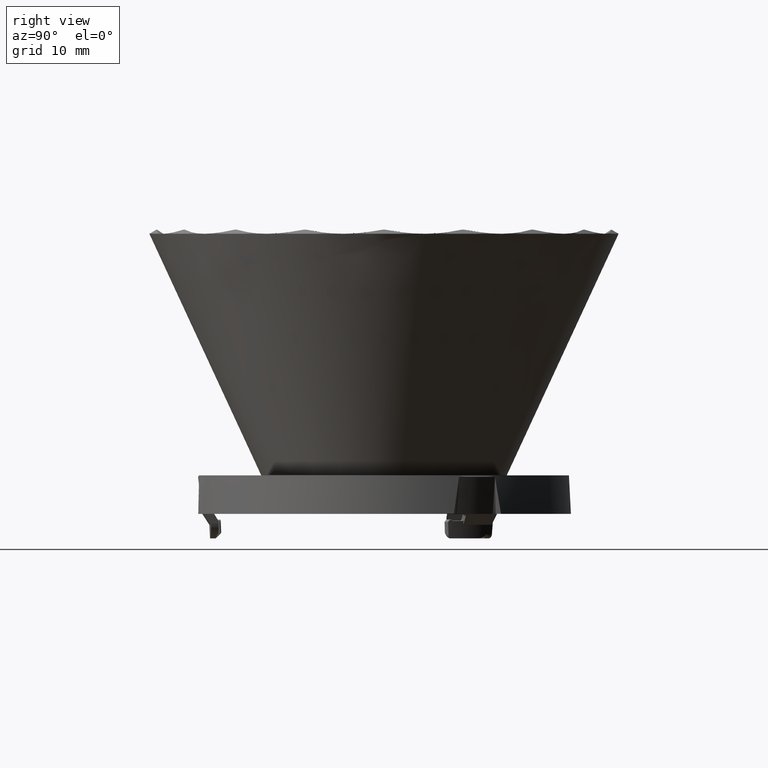
[diagram: clean part render]
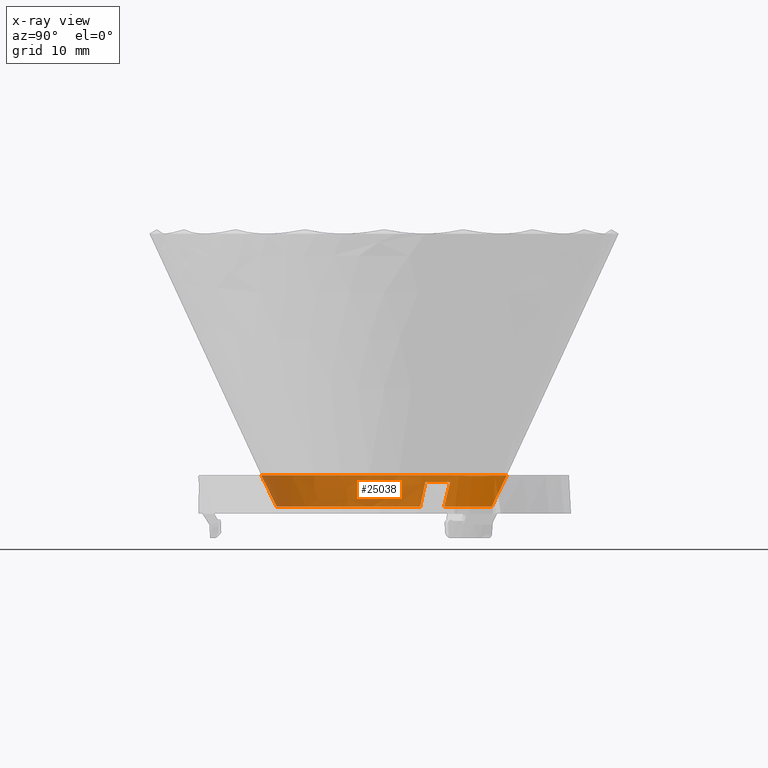
[diagram: x-ray — body ghosted, one internal face saturated and labeled with its STEP entity id]
A machine part, right view, then the same camera in x-ray: the body is ghosted and one INTERNAL B-rep face — a face not visible from any outside direction — is saturated and labeled: STEP entity #25038.
In plain terms, the highlighted face is a freeform B-spline surface patch.
Its self-contained STEP definition (entity closure, byte-faithful):
#89 = CARTESIAN_POINT ( 'NONE',  ( -17.52377203157334400, -2.146043132745420400E-015, 4.500000000000121700 ) ) ;
#244 = CARTESIAN_POINT ( 'NONE',  ( 9.430167776554977600, 14.20600384755253400, 3.500000000000003100 ) ) ;
#267 = AXIS2_PLACEMENT_3D ( 'NONE', #12550, #28347, #14842 ) ;
#288 = B_SPLINE_CURVE_WITH_KNOTS ( 'NONE', 3,
 ( #19429, #9212, #11494, #27280, #13761, #244 ),
 .UNSPECIFIED., .F., .F.,
 ( 4, 2, 4 ),
 ( 8.779133849441728700E-020, 0.001944414594689597700, 0.003888829189379195400 ),
 .UNSPECIFIED. ) ;
#762 =( BOUNDED_SURFACE ( )  B_SPLINE_SURFACE ( 3, 3, ( 
 ( #16904, #10185, #25976, #12453 ),
 ( #28244, #14725, #1211, #16994 ),
 ( #3504, #19268, #5754, #21542 ),
 ( #8012, #23814, #10275, #26087 ) ),
 .UNSPECIFIED., .F., .F., .F. ) 
 B_SPLINE_SURFACE_WITH_KNOTS ( ( 4, 4 ),
 ( 4, 4 ),
 ( 0.0000000000000000000, 0.1801735269630493600 ),
 ( 0.0000000000000000000, 1.000000000000000000 ),
 .UNSPECIFIED. ) 
 GEOMETRIC_REPRESENTATION_ITEM ( )  RATIONAL_B_SPLINE_SURFACE ( (
 ( 1.000000000000000000, 0.3333333333333334300, 0.3333333333333334300, 1.000000000000000000),
 ( 1.000000000000000000, 0.3333333333333334300, 0.3333333333333334300, 1.000000000000000000),
 ( 1.000000000000000000, 0.3333333333333334300, 0.3333333333333334300, 1.000000000000000000),
 ( 1.000000000000000000, 0.3333333333333334300, 0.3333333333333334300, 1.000000000000000000) ) ) 
 REPRESENTATION_ITEM ( '' )  SURFACE ( )  );
#1028 = B_SPLINE_CURVE_WITH_KNOTS ( 'NONE', 3,
 ( #24859, #18061, #13587, #89 ),
 .UNSPECIFIED., .F., .F.,
 ( 4, 4 ),
 ( 0.1509792606911077000, 0.1801735269630493600 ),
 .UNSPECIFIED. ) ;
#1057 = CARTESIAN_POINT ( 'NONE',  ( 15.74256748970793200, 0.0000000000000000000, 0.7497565291589317600 ) ) ;
#1104 = VERTEX_POINT ( 'NONE', #27942 ) ;
#1185 = CARTESIAN_POINT ( 'NONE',  ( 5.895246861563110800, 15.99952105695303600, 3.500000000000003100 ) ) ;
#1193 = DIRECTION ( 'NONE',  ( -1.000000000000000000, 0.0000000000000000000, 0.0000000000000000000 ) ) ;
#1211 = CARTESIAN_POINT ( 'NONE',  ( 15.74256748970793900, 31.48513497941589600, 0.7497565291589565200 ) ) ;
#1939 = EDGE_CURVE ( 'NONE', #23562, #15500, #10692, .T. ) ;
#1958 = CIRCLE ( 'NONE', #13781, 17.05105889998193500 ) ;
#1977 = ORIENTED_EDGE ( 'NONE', *, *, #18375, .T. ) ;
#2003 = AXIS2_PLACEMENT_3D ( 'NONE', #12473, #28270, #14756 ) ;
#2058 = CARTESIAN_POINT ( 'NONE',  ( -16.73987491890962400, 1.063874929194730700, 2.914473033739854600 ) ) ;
#2122 = CARTESIAN_POINT ( 'NONE',  ( 0.0000000000000000000, 0.0000000000000000000, 3.500000000000003100 ) ) ;
#2256 = EDGE_CURVE ( 'NONE', #13512, #1104, #9473, .T. ) ;
#2702 = ORIENTED_EDGE ( 'NONE', *, *, #25716, .T. ) ;
#3338 = CARTESIAN_POINT ( 'NONE',  ( 15.35999999999999900, 0.0000000000000000000, 0.0000000000000000000 ) ) ;
#3504 = CARTESIAN_POINT ( 'NONE',  ( -16.51026855975784700, -2.021924754477062800E-015, 2.351579910127600500 ) ) ;
#3767 = VERTEX_POINT ( 'NONE', #22762 ) ;
#4109 = CARTESIAN_POINT ( 'NONE',  ( -17.05105889998193500, -2.088152470393586100E-015, 3.500000000000003100 ) ) ;
#4155 = EDGE_CURVE ( 'NONE', #15500, #3767, #17279, .T. ) ;
#4385 = DIRECTION ( 'NONE',  ( -1.000000000000000000, 1.243449787580175600E-014, 0.0000000000000000000 ) ) ;
#4601 = CIRCLE ( 'NONE', #25738, 17.05105889998193500 ) ;
#4698 = ORIENTED_EDGE ( 'NONE', *, *, #4155, .F. ) ;
#5165 = CARTESIAN_POINT ( 'NONE',  ( 5.407103790312772800, 14.98885799380376200, 1.161303836223191600 ) ) ;
#5754 = CARTESIAN_POINT ( 'NONE',  ( 16.51026855975784000, 33.02053711951568700, 2.351579910127600000 ) ) ;
#7426 = CARTESIAN_POINT ( 'NONE',  ( 5.154150918887146400, 14.46942736618608500, 0.0000000000000000000 ) ) ;
#8012 = CARTESIAN_POINT ( 'NONE',  ( -17.52377203157344700, -2.146043132745433800E-015, 4.500000000000336600 ) ) ;
#8082 = EDGE_CURVE ( 'NONE', #20702, #1104, #21486, .T. ) ;
#8619 = AXIS2_PLACEMENT_3D ( 'NONE', #28229, #14710, #1193 ) ;
#8664 = ORIENTED_EDGE ( 'NONE', *, *, #2256, .F. ) ;
#9212 = CARTESIAN_POINT ( 'NONE',  ( 8.731795451463746400, 12.99303190300788700, 0.5771146307705434800 ) ) ;
#9250 = ORIENTED_EDGE ( 'NONE', *, *, #8082, .T. ) ;
#9473 = CIRCLE ( 'NONE', #267, 15.35999999999999900 ) ;
#9584 = CARTESIAN_POINT ( 'NONE',  ( 5.774209122251458700, 15.74843965865326600, 2.914421997464585100 ) ) ;
#10185 = CARTESIAN_POINT ( 'NONE',  ( -15.36000000000000100, 30.71999999999998800, 0.0000000000000000000 ) ) ;
#10275 = CARTESIAN_POINT ( 'NONE',  ( 17.52377203157344400, 35.04754406314690100, 4.500000000000336600 ) ) ;
#10626 = CARTESIAN_POINT ( 'NONE',  ( 0.0000000000000000000, 0.0000000000000000000, 3.500000000000003100 ) ) ;
#10663 = ORIENTED_EDGE ( 'NONE', *, *, #19367, .F. ) ;
#10692 = B_SPLINE_CURVE_WITH_KNOTS ( 'NONE', 3,
 ( #3338, #1057, #14565, #19113 ),
 .UNSPECIFIED., .F., .F.,
 ( 4, 4 ),
 ( 0.0000000000000000000, 0.1801735269630434200 ),
 .UNSPECIFIED. ) ;
#11021 = CARTESIAN_POINT ( 'NONE',  ( -15.32285789606695300, 1.067532621018463900, 0.0000000000000000000 ) ) ;
#11116 = EDGE_LOOP ( 'NONE', ( #12327, #1977, #4698, #23942, #10663, #19331, #21938, #9250, #8664, #2702 ) ) ;
#11494 = CARTESIAN_POINT ( 'NONE',  ( 8.871710113633170600, 13.23617881486998200, 1.161401741259056000 ) ) ;
#11646 = EDGE_CURVE ( 'NONE', #14191, #20702, #1958, .T. ) ;
#12010 = CARTESIAN_POINT ( 'NONE',  ( 9.430167776554977600, 14.20600384755253400, 3.500000000000003100 ) ) ;
#12327 = ORIENTED_EDGE ( 'NONE', *, *, #27541, .T. ) ;
#12433 = FACE_OUTER_BOUND ( 'NONE', #11116, .T. ) ;
#12453 = CARTESIAN_POINT ( 'NONE',  ( 15.35999999999999900, 3.762114966980668600E-015, 0.0000000000000000000 ) ) ;
#12473 = CARTESIAN_POINT ( 'NONE',  ( 0.0000000000000000000, 0.0000000000000000000, 4.500000000000121700 ) ) ;
#12550 = CARTESIAN_POINT ( 'NONE',  ( 0.0000000000000000000, 0.0000000000000000000, 0.0000000000000000000 ) ) ;
#12885 = DIRECTION ( 'NONE',  ( -1.000000000000000000, 0.0000000000000000000, 0.0000000000000000000 ) ) ;
#13192 = CARTESIAN_POINT ( 'NONE',  ( -15.61819342591838300, 1.065440730112997300, 0.5771146307705434800 ) ) ;
#13250 = CARTESIAN_POINT ( 'NONE',  ( 15.35999999999999900, 0.0000000000000000000, 0.0000000000000000000 ) ) ;
#13512 = VERTEX_POINT ( 'NONE', #26683 ) ;
#13587 = CARTESIAN_POINT ( 'NONE',  ( -17.35954984686931000, -2.125931715460742800E-015, 4.151882553309088800 ) ) ;
#13761 = CARTESIAN_POINT ( 'NONE',  ( 9.291280174586884000, 13.96521947135230100, 2.914473033739859900 ) ) ;
#13781 = AXIS2_PLACEMENT_3D ( 'NONE', #10626, #26414, #12885 ) ;
#13924 = VERTEX_POINT ( 'NONE', #15304 ) ;
#14191 = VERTEX_POINT ( 'NONE', #12010 ) ;
#14565 = CARTESIAN_POINT ( 'NONE',  ( 16.51026855975779000, 0.0000000000000000000, 2.351579910127494800 ) ) ;
#14710 = DIRECTION ( 'NONE',  ( 0.0000000000000000000, 0.0000000000000000000, -1.000000000000000000 ) ) ;
#14725 = CARTESIAN_POINT ( 'NONE',  ( -15.74256748970795000, 31.48513497941588900, 0.7497565291589565200 ) ) ;
#14756 = DIRECTION ( 'NONE',  ( -1.000000000000000000, 0.0000000000000000000, 0.0000000000000000000 ) ) ;
#14842 = DIRECTION ( 'NONE',  ( -1.000000000000000000, 0.0000000000000000000, 0.0000000000000000000 ) ) ;
#15091 = CIRCLE ( 'NONE', #8619, 15.35999999999999900 ) ;
#15304 = CARTESIAN_POINT ( 'NONE',  ( -17.01784410651746500, 1.063762932669679100, 3.500000000000003100 ) ) ;
#15500 = VERTEX_POINT ( 'NONE', #19454 ) ;
#15564 = CARTESIAN_POINT ( 'NONE',  ( -16.46099262989923100, 1.064091026186662700, 2.329388377969000300 ) ) ;
#16406 = CARTESIAN_POINT ( 'NONE',  ( 5.895246861563110800, 15.99952105695303600, 3.500000000000003100 ) ) ;
#16904 = CARTESIAN_POINT ( 'NONE',  ( -15.35999999999999900, -1.881057483490334300E-015, 0.0000000000000000000 ) ) ;
#16994 = CARTESIAN_POINT ( 'NONE',  ( 15.74256748970794600, 3.855816977326404600E-015, 0.7497565291589564100 ) ) ;
#17279 = CIRCLE ( 'NONE', #2003, 17.52377203157334400 ) ;
#17498 = EDGE_CURVE ( 'NONE', #27369, #14191, #288, .T. ) ;
#17851 = CARTESIAN_POINT ( 'NONE',  ( -17.01784410651746500, 1.063762932669679100, 3.500000000000003100 ) ) ;
#17910 = DIRECTION ( 'NONE',  ( -0.0000000000000000000, -0.0000000000000000000, 1.000000000000000000 ) ) ;
#18061 = CARTESIAN_POINT ( 'NONE',  ( -17.20178122126351300, -2.106610631225341200E-015, 3.818116041102338700 ) ) ;
#18375 = EDGE_CURVE ( 'NONE', #28891, #3767, #1028, .T. ) ;
#18688 = CARTESIAN_POINT ( 'NONE',  ( 5.652663322701252800, 15.49655171612865200, 2.329304169103783000 ) ) ;
#19113 = CARTESIAN_POINT ( 'NONE',  ( 17.52377203157334400, 0.0000000000000000000, 4.500000000000121700 ) ) ;
#19268 = CARTESIAN_POINT ( 'NONE',  ( -16.51026855975784700, 33.02053711951568700, 2.351579910127600000 ) ) ;
#19331 = ORIENTED_EDGE ( 'NONE', *, *, #17498, .T. ) ;
#19367 = EDGE_CURVE ( 'NONE', #27369, #23562, #15091, .T. ) ;
#19429 = CARTESIAN_POINT ( 'NONE',  ( 8.585939317204115200, 12.73621788606368600, 0.0000000000000000000 ) ) ;
#19454 = CARTESIAN_POINT ( 'NONE',  ( 17.52377203157334400, 0.0000000000000000000, 4.500000000000121700 ) ) ;
#20702 = VERTEX_POINT ( 'NONE', #1185 ) ;
#20948 = CARTESIAN_POINT ( 'NONE',  ( 5.284632228957175200, 14.73550040697105800, 0.5770245140913510300 ) ) ;
#21486 = B_SPLINE_CURVE_WITH_KNOTS ( 'NONE', 3,
 ( #16406, #9584, #18688, #5165, #20948, #7426 ),
 .UNSPECIFIED., .F., .F.,
 ( 4, 2, 4 ),
 ( 3.157244383156457100E-018, 0.001945533981891326700, 0.003891067963782649800 ),
 .UNSPECIFIED. ) ;
#21542 = CARTESIAN_POINT ( 'NONE',  ( 16.51026855975784700, 4.043849508954125600E-015, 2.351579910127600500 ) ) ;
#21570 = CARTESIAN_POINT ( 'NONE',  ( 8.585939317204115200, 12.73621788606368600, 0.0000000000000000000 ) ) ;
#21938 = ORIENTED_EDGE ( 'NONE', *, *, #11646, .T. ) ;
#22762 = CARTESIAN_POINT ( 'NONE',  ( -17.52377203157334400, -2.146043132745420400E-015, 4.500000000000121700 ) ) ;
#23562 = VERTEX_POINT ( 'NONE', #13250 ) ;
#23814 = CARTESIAN_POINT ( 'NONE',  ( -17.52377203157345400, 35.04754406314689400, 4.500000000000336600 ) ) ;
#23942 = ORIENTED_EDGE ( 'NONE', *, *, #1939, .F. ) ;
#24859 = CARTESIAN_POINT ( 'NONE',  ( -17.05105889998193500, -2.088152470393586100E-015, 3.500000000000003100 ) ) ;
#25038 = ADVANCED_FACE ( 'NONE', ( #12433 ), #762, .T. ) ;
#25716 = EDGE_CURVE ( 'NONE', #13512, #13924, #25824, .T. ) ;
#25738 = AXIS2_PLACEMENT_3D ( 'NONE', #2122, #17910, #4385 ) ;
#25824 = B_SPLINE_CURVE_WITH_KNOTS ( 'NONE', 3,
 ( #11021, #13192, #29082, #15564, #2058, #17851 ),
 .UNSPECIFIED., .F., .F.,
 ( 4, 2, 4 ),
 ( 6.823896164778325900E-019, 0.001944414594689597900, 0.003888829189379195400 ),
 .UNSPECIFIED. ) ;
#25976 = CARTESIAN_POINT ( 'NONE',  ( 15.35999999999999100, 30.71999999999999200, 0.0000000000000000000 ) ) ;
#26087 = CARTESIAN_POINT ( 'NONE',  ( 17.52377203157344700, 4.292086265490867700E-015, 4.500000000000336600 ) ) ;
#26414 = DIRECTION ( 'NONE',  ( -0.0000000000000000000, -0.0000000000000000000, 1.000000000000000000 ) ) ;
#26683 = CARTESIAN_POINT ( 'NONE',  ( -15.32285789606695300, 1.067532621018463900, 0.0000000000000000000 ) ) ;
#27280 = CARTESIAN_POINT ( 'NONE',  ( 9.152026175566382100, 13.72359227590775700, 2.329388377968964800 ) ) ;
#27369 = VERTEX_POINT ( 'NONE', #21570 ) ;
#27541 = EDGE_CURVE ( 'NONE', #13924, #28891, #4601, .T. ) ;
#27942 = CARTESIAN_POINT ( 'NONE',  ( 5.154150918887146400, 14.46942736618608500, 0.0000000000000000000 ) ) ;
#28229 = CARTESIAN_POINT ( 'NONE',  ( 0.0000000000000000000, 0.0000000000000000000, 0.0000000000000000000 ) ) ;
#28244 = CARTESIAN_POINT ( 'NONE',  ( -15.74256748970794600, -1.927908488663202300E-015, 0.7497565291589564100 ) ) ;
#28270 = DIRECTION ( 'NONE',  ( -0.0000000000000000000, -0.0000000000000000000, 1.000000000000000000 ) ) ;
#28347 = DIRECTION ( 'NONE',  ( 0.0000000000000000000, 0.0000000000000000000, -1.000000000000000000 ) ) ;
#28891 = VERTEX_POINT ( 'NONE', #4109 ) ;
#29082 = CARTESIAN_POINT ( 'NONE',  ( -15.89872215952740900, 1.065036925982580900, 1.161401741259091800 ) ) ;